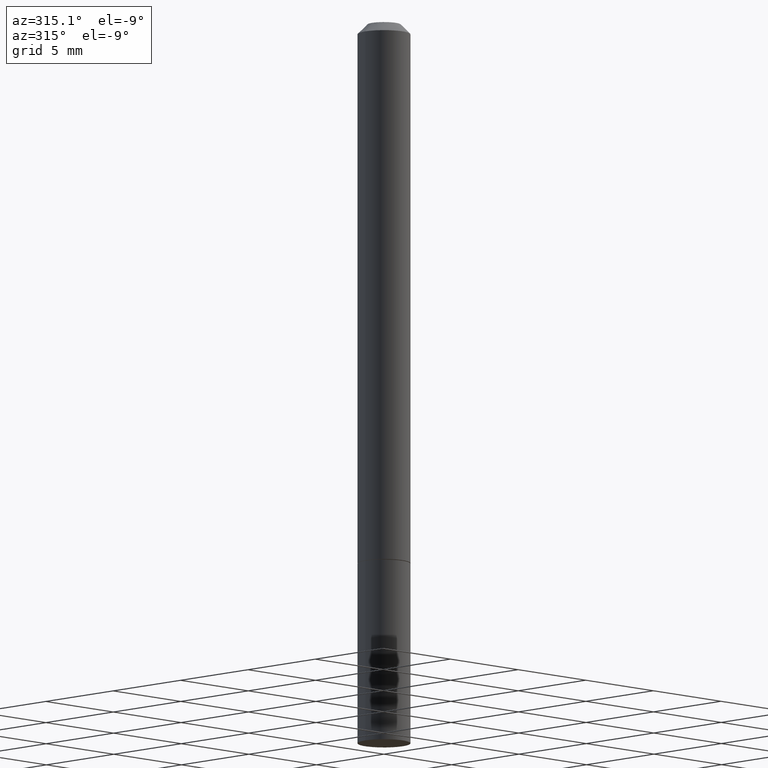
[diagram: clean part render]
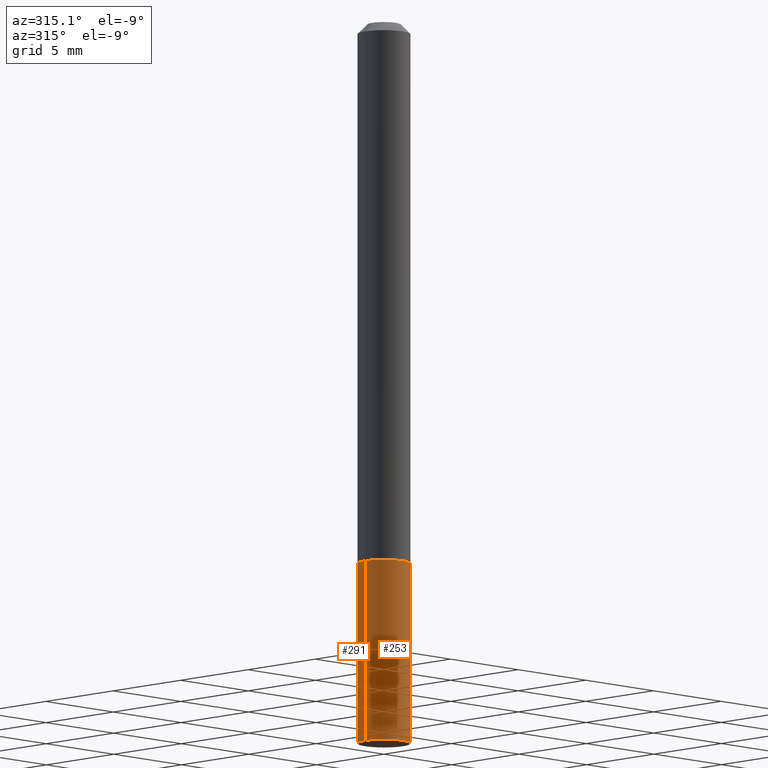
[diagram: same view with one multi-face feature highlighted, each face labeled with its STEP entity id]
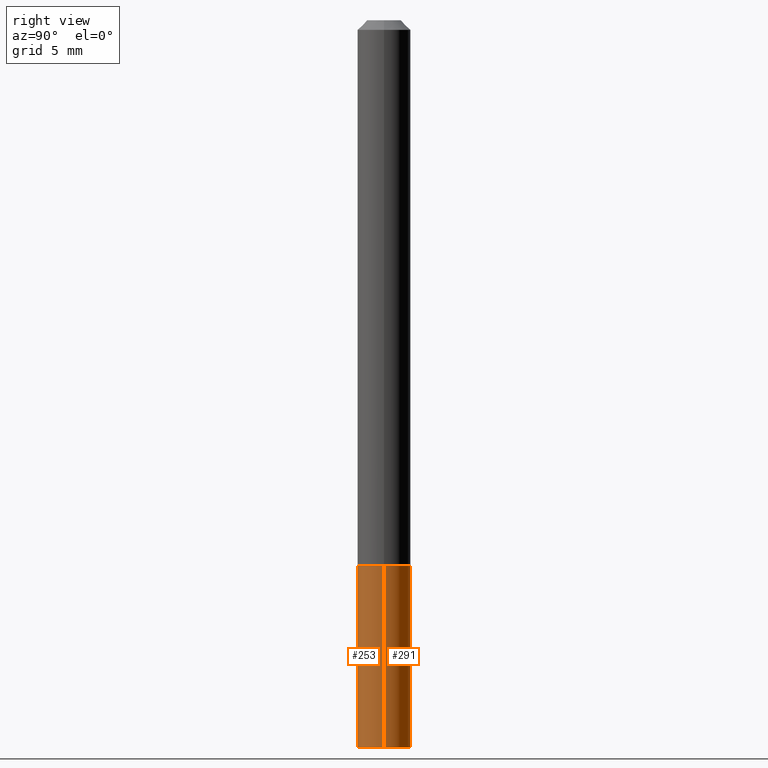
[diagram: same view with one multi-face feature highlighted, each face labeled with its STEP entity id]
A machine part, auxiliary view. The highlighted faces form ONE feature: a constant-radius fillet chain: 2 tangent blend faces with common blend radius 1.3894 mm. The faces share edges in the B-rep.
A second angle (right view) of the same feature is appended — it is thin or edge-on in the first view.
Their STEP definitions:
[1] entity #253 (Cylinder):
#1 = CYLINDRICAL_SURFACE ( 'NONE', #359, 0.05469999999999999862 ) ;
#2 = DIRECTION ( 'NONE',  ( 1.000000000000000000, -6.982962677686266711E-15, 4.876176775795935793E-29 ) ) ;
#9 = DIRECTION ( 'NONE',  ( -2.445468806185136877E-29, 3.491481338843145188E-15, 1.000000000000000000 ) ) ;
#18 = CARTESIAN_POINT ( 'NONE',  ( -0.05469999999999999862, 3.886668764607747919E-16, -2.690657494369433708E-30 ) ) ;
#24 = DIRECTION ( 'NONE',  ( 1.000000000000000000, -6.982962677686260400E-15, 0.000000000000000000 ) ) ;
#29 = DIRECTION ( 'NONE',  ( -2.445468806185136597E-29, 3.491481338843145583E-15, 1.000000000000000000 ) ) ;
#32 = ORIENTED_EDGE ( 'NONE', *, *, #44, .T. ) ;
#44 = EDGE_CURVE ( 'NONE', #248, #354, #340, .T. ) ;
#67 = EDGE_CURVE ( 'NONE', #286, #248, #96, .T. ) ;
#92 = AXIS2_PLACEMENT_3D ( 'NONE', #293, #290, #24 ) ;
#96 = CIRCLE ( 'NONE', #92, 0.05469999999999999862 ) ;
#102 = ORIENTED_EDGE ( 'NONE', *, *, #376, .F. ) ;
#105 = CARTESIAN_POINT ( 'NONE',  ( 0.05469999999999999862, -3.819680584694387859E-16, 2.667268696360376954E-30 ) ) ;
#117 = DIRECTION ( 'NONE',  ( 1.000000000000000000, -6.982962677686269866E-15, 0.000000000000000000 ) ) ;
#128 = ORIENTED_EDGE ( 'NONE', *, *, #285, .F. ) ;
#139 = CARTESIAN_POINT ( 'NONE',  ( 0.05469999999999999862, -4.309884564667978405E-15, -1.125000000000000222 ) ) ;
#156 = VECTOR ( 'NONE', #9, 39.37007874015748143 ) ;
#169 = ORIENTED_EDGE ( 'NONE', *, *, #67, .T. ) ;
#186 = CARTESIAN_POINT ( 'NONE',  ( 0.05469999999999998475, -5.612491248742821943E-15, -1.500000000000000222 ) ) ;
#198 = CARTESIAN_POINT ( 'NONE',  ( -0.05469999999999999862, -4.193902380770854500E-15, -1.125000000000000222 ) ) ;
#248 = VERTEX_POINT ( 'NONE', #186 ) ;
#253 = ADVANCED_FACE ( 'NONE', ( #267 ), #1, .T. ) ;
#263 = DIRECTION ( 'NONE',  ( -2.445468806185136597E-29, 3.491481338843145583E-15, 1.000000000000000000 ) ) ;
#267 = FACE_OUTER_BOUND ( 'NONE', #342, .T. ) ;
#273 = VECTOR ( 'NONE', #287, 39.37007874015748143 ) ;
#274 = AXIS2_PLACEMENT_3D ( 'NONE', #302, #263, #117 ) ;
#285 = EDGE_CURVE ( 'NONE', #286, #312, #351, .T. ) ;
#286 = VERTEX_POINT ( 'NONE', #317 ) ;
#287 = DIRECTION ( 'NONE',  ( -2.445468806185136877E-29, 3.491481338843145188E-15, 1.000000000000000000 ) ) ;
#290 = DIRECTION ( 'NONE',  ( -2.445468806185136597E-29, 3.491481338843145583E-15, 1.000000000000000000 ) ) ;
#293 = CARTESIAN_POINT ( 'NONE',  ( 3.668203209277704895E-29, -5.237222008264718177E-15, -1.500000000000000222 ) ) ;
#301 = CIRCLE ( 'NONE', #274, 0.05469999999999999862 ) ;
#302 = CARTESIAN_POINT ( 'NONE',  ( 2.751152406958279232E-29, -3.927916506198539224E-15, -1.125000000000000222 ) ) ;
#312 = VERTEX_POINT ( 'NONE', #198 ) ;
#317 = CARTESIAN_POINT ( 'NONE',  ( -0.05469999999999998475, -4.855253949795279785E-15, -1.500000000000000222 ) ) ;
#340 = LINE ( 'NONE', #105, #156 ) ;
#342 = EDGE_LOOP ( 'NONE', ( #128, #169, #32, #102 ) ) ;
#351 = LINE ( 'NONE', #18, #273 ) ;
#354 = VERTEX_POINT ( 'NONE', #139 ) ;
#359 = AXIS2_PLACEMENT_3D ( 'NONE', #361, #29, #2 ) ;
#361 = CARTESIAN_POINT ( 'NONE',  ( 0.000000000000000000, 0.000000000000000000, 0.000000000000000000 ) ) ;
#376 = EDGE_CURVE ( 'NONE', #312, #354, #301, .T. ) ;
[2] entity #291 (Cylinder):
#9 = DIRECTION ( 'NONE',  ( -2.445468806185136877E-29, 3.491481338843145188E-15, 1.000000000000000000 ) ) ;
#13 = EDGE_LOOP ( 'NONE', ( #257, #220, #48, #38 ) ) ;
#18 = CARTESIAN_POINT ( 'NONE',  ( -0.05469999999999999862, 3.886668764607747919E-16, -2.690657494369433708E-30 ) ) ;
#38 = ORIENTED_EDGE ( 'NONE', *, *, #44, .F. ) ;
#44 = EDGE_CURVE ( 'NONE', #248, #354, #340, .T. ) ;
#48 = ORIENTED_EDGE ( 'NONE', *, *, #93, .F. ) ;
#55 = CARTESIAN_POINT ( 'NONE',  ( 2.751152406958279232E-29, -3.927916506198539224E-15, -1.125000000000000222 ) ) ;
#57 = DIRECTION ( 'NONE',  ( 1.000000000000000000, -6.982962677686266711E-15, 4.876176775795935793E-29 ) ) ;
#93 = EDGE_CURVE ( 'NONE', #354, #312, #190, .T. ) ;
#105 = CARTESIAN_POINT ( 'NONE',  ( 0.05469999999999999862, -3.819680584694387859E-16, 2.667268696360376954E-30 ) ) ;
#109 = AXIS2_PLACEMENT_3D ( 'NONE', #325, #344, #57 ) ;
#139 = CARTESIAN_POINT ( 'NONE',  ( 0.05469999999999999862, -4.309884564667978405E-15, -1.125000000000000222 ) ) ;
#142 = FACE_OUTER_BOUND ( 'NONE', #13, .T. ) ;
#144 = DIRECTION ( 'NONE',  ( 1.000000000000000000, -6.982962677686260400E-15, 0.000000000000000000 ) ) ;
#156 = VECTOR ( 'NONE', #9, 39.37007874015748143 ) ;
#178 = DIRECTION ( 'NONE',  ( -2.445468806185136597E-29, 3.491481338843145583E-15, 1.000000000000000000 ) ) ;
#186 = CARTESIAN_POINT ( 'NONE',  ( 0.05469999999999998475, -5.612491248742821943E-15, -1.500000000000000222 ) ) ;
#190 = CIRCLE ( 'NONE', #310, 0.05469999999999999862 ) ;
#198 = CARTESIAN_POINT ( 'NONE',  ( -0.05469999999999999862, -4.193902380770854500E-15, -1.125000000000000222 ) ) ;
#207 = CYLINDRICAL_SURFACE ( 'NONE', #109, 0.05469999999999999862 ) ;
#210 = DIRECTION ( 'NONE',  ( 1.000000000000000000, -6.982962677686269866E-15, 0.000000000000000000 ) ) ;
#220 = ORIENTED_EDGE ( 'NONE', *, *, #285, .T. ) ;
#245 = EDGE_CURVE ( 'NONE', #248, #286, #331, .T. ) ;
#248 = VERTEX_POINT ( 'NONE', #186 ) ;
#257 = ORIENTED_EDGE ( 'NONE', *, *, #245, .T. ) ;
#271 = AXIS2_PLACEMENT_3D ( 'NONE', #319, #178, #144 ) ;
#273 = VECTOR ( 'NONE', #287, 39.37007874015748143 ) ;
#285 = EDGE_CURVE ( 'NONE', #286, #312, #351, .T. ) ;
#286 = VERTEX_POINT ( 'NONE', #317 ) ;
#287 = DIRECTION ( 'NONE',  ( -2.445468806185136877E-29, 3.491481338843145188E-15, 1.000000000000000000 ) ) ;
#291 = ADVANCED_FACE ( 'NONE', ( #142 ), #207, .T. ) ;
#310 = AXIS2_PLACEMENT_3D ( 'NONE', #55, #324, #210 ) ;
#312 = VERTEX_POINT ( 'NONE', #198 ) ;
#317 = CARTESIAN_POINT ( 'NONE',  ( -0.05469999999999998475, -4.855253949795279785E-15, -1.500000000000000222 ) ) ;
#319 = CARTESIAN_POINT ( 'NONE',  ( 3.668203209277704895E-29, -5.237222008264718177E-15, -1.500000000000000222 ) ) ;
#324 = DIRECTION ( 'NONE',  ( -2.445468806185136597E-29, 3.491481338843145583E-15, 1.000000000000000000 ) ) ;
#325 = CARTESIAN_POINT ( 'NONE',  ( 0.000000000000000000, 0.000000000000000000, 0.000000000000000000 ) ) ;
#331 = CIRCLE ( 'NONE', #271, 0.05469999999999999862 ) ;
#340 = LINE ( 'NONE', #105, #156 ) ;
#344 = DIRECTION ( 'NONE',  ( -2.445468806185136597E-29, 3.491481338843145583E-15, 1.000000000000000000 ) ) ;
#351 = LINE ( 'NONE', #18, #273 ) ;
#354 = VERTEX_POINT ( 'NONE', #139 ) ;